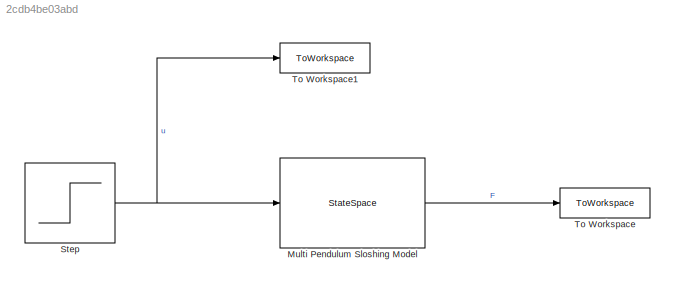
MODEL slx_2cdb4be03abd
KIND model
CONFIG AbsTol = auto
CONFIG EnableMultiTasking = off
CONFIG FixedStep = 0.01
CONFIG MaxStep = auto
CONFIG MinStep = auto
CONFIG RelTol = 1e-4
CONFIG SampleTimeConstraint = Unconstrained
CONFIG SolverName = ode23
CONFIG StartTime = 0.0
CONFIG StopTime = 100
BLOCK [StateSpace] Multi Pendulum Sloshing Model
  A = sys_damped.A
  B = sys_damped.B
  C = sys_damped.C
  D = sys_damped.D
  InitialCondition = x0
BLOCK [Step] Step
  SampleTime = 0
  Time = 0
BLOCK [ToWorkspace] To Workspace
  FixptAsFi = on
  MaxDataPoints = inf
  SampleTime = -1
  SaveFormat = Timeseries
  VariableName = F
BLOCK [ToWorkspace] To Workspace1
  FixptAsFi = on
  MaxDataPoints = inf
  SampleTime = -1
  VariableName = u
LINE Multi Pendulum Sloshing Model:1 -> To Workspace:1
NET Step:1 -> Multi Pendulum Sloshing Model:1, To Workspace1:1
note: NET lines group one-source signal fan-out (src -> all destinations, sorted); 1:1 wires keep LINE
